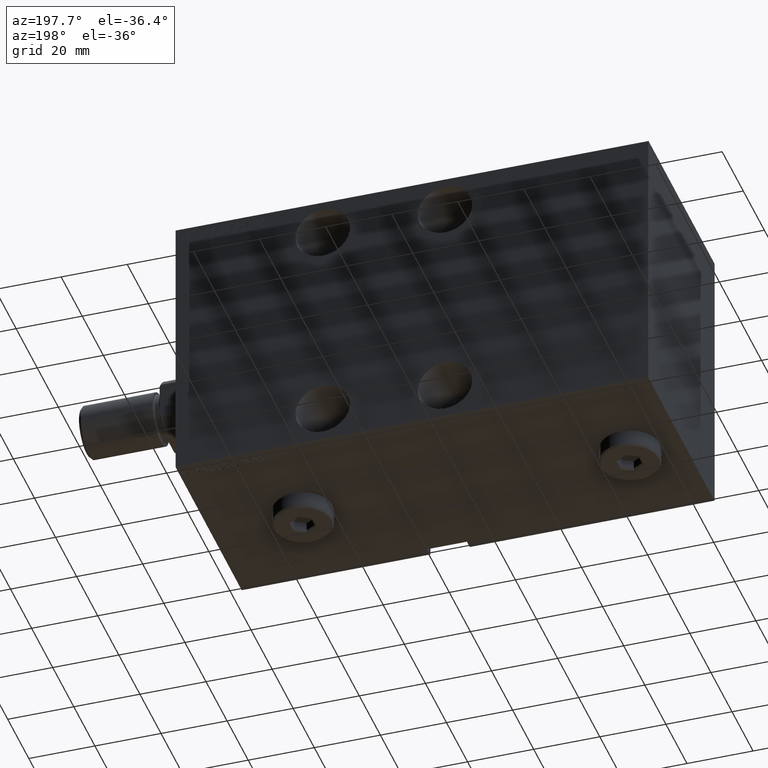
[diagram: clean part render]
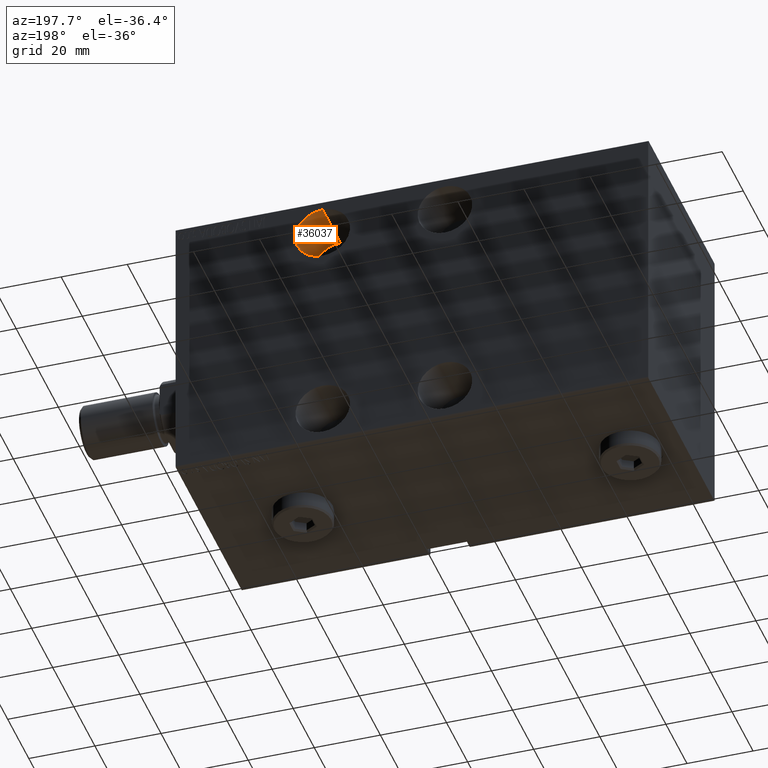
[diagram: same view with one face highlighted and labeled with its STEP entity id]
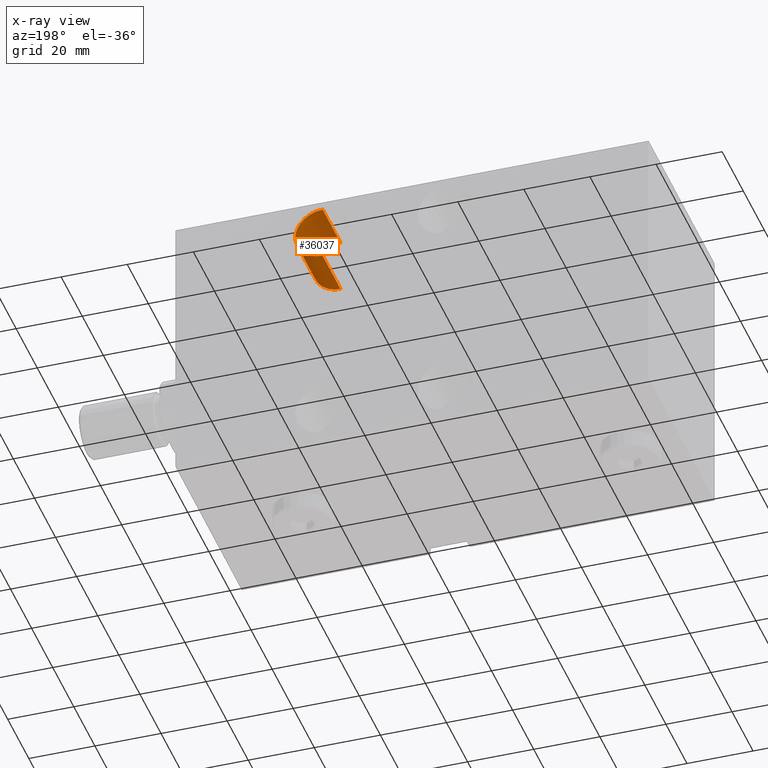
[diagram: x-ray of the same camera — body ghosted, the highlighted face saturated]
A machine part, auxiliary view. The second image highlights one B-rep face of the part: STEP entity #36037.
The next image is the same camera in x-ray: the body ghosted, the highlighted face saturated — about 0% of this face is hidden behind the body in this view.
In plain terms, the highlighted cylindrical surface (edge-blend (fillet) strip) has radius 8.25 mm, axis along (-0, 1, 0).
Its self-contained STEP definition (entity closure, byte-faithful):
#1408 = ORIENTED_EDGE ( 'NONE', *, *, #30223, .T. ) ;
#2018 = CARTESIAN_POINT ( 'NONE',  ( 44.50000000000000000, -14.49999999999999289, 39.74999999999999289 ) ) ;
#2187 = FACE_OUTER_BOUND ( 'NONE', #40436, .T. ) ;
#4718 = LINE ( 'NONE', #39663, #44273 ) ;
#5805 = DIRECTION ( 'NONE',  ( 0.000000000000000000, -1.000000000000000000, 0.000000000000000000 ) ) ;
#9118 = CYLINDRICAL_SURFACE ( 'NONE', #25991, 8.249999999999996447 ) ;
#9994 = CARTESIAN_POINT ( 'NONE',  ( 44.50000000000000000, -14.49999999999999289, 23.24999999999999645 ) ) ;
#10450 = AXIS2_PLACEMENT_3D ( 'NONE', #41585, #10881, #31057 ) ;
#10538 = CARTESIAN_POINT ( 'NONE',  ( 44.50000000000000000, -14.49999999999999289, 39.74999999999999289 ) ) ;
#10881 = DIRECTION ( 'NONE',  ( 0.000000000000000000, -1.000000000000000000, 0.000000000000000000 ) ) ;
#12175 = ORIENTED_EDGE ( 'NONE', *, *, #15144, .T. ) ;
#14620 = ORIENTED_EDGE ( 'NONE', *, *, #27626, .F. ) ;
#15144 = EDGE_CURVE ( 'NONE', #43858, #16906, #29796, .T. ) ;
#15434 = CARTESIAN_POINT ( 'NONE',  ( 44.50000000000000000, -31.49999999999999289, 23.24999999999999645 ) ) ;
#16906 = VERTEX_POINT ( 'NONE', #15434 ) ;
#18392 = DIRECTION ( 'NONE',  ( -0.000000000000000000, -1.000000000000000000, -0.000000000000000000 ) ) ;
#19211 = CARTESIAN_POINT ( 'NONE',  ( 44.50000000000000000, -31.49999999999999289, 39.74999999999999289 ) ) ;
#19866 = DIRECTION ( 'NONE',  ( 0.000000000000000000, 0.000000000000000000, -1.000000000000000000 ) ) ;
#20635 = DIRECTION ( 'NONE',  ( -0.000000000000000000, -1.000000000000000000, -0.000000000000000000 ) ) ;
#21186 = EDGE_CURVE ( 'NONE', #39387, #16906, #4718, .T. ) ;
#23078 = DIRECTION ( 'NONE',  ( 0.000000000000000000, 0.000000000000000000, -1.000000000000000000 ) ) ;
#23245 = CARTESIAN_POINT ( 'NONE',  ( 44.50000000000000000, -14.49999999999999289, 31.49999999999999289 ) ) ;
#25991 = AXIS2_PLACEMENT_3D ( 'NONE', #23245, #36456, #19866 ) ;
#27440 = VERTEX_POINT ( 'NONE', #2018 ) ;
#27626 = EDGE_CURVE ( 'NONE', #27440, #39387, #44338, .T. ) ;
#29353 = AXIS2_PLACEMENT_3D ( 'NONE', #33160, #5805, #23078 ) ;
#29409 = VECTOR ( 'NONE', #20635, 1000.000000000000000 ) ;
#29796 = CIRCLE ( 'NONE', #10450, 8.249999999999996447 ) ;
#30223 = EDGE_CURVE ( 'NONE', #27440, #43858, #34080, .T. ) ;
#31057 = DIRECTION ( 'NONE',  ( 0.000000000000000000, 0.000000000000000000, -1.000000000000000000 ) ) ;
#33160 = CARTESIAN_POINT ( 'NONE',  ( 44.50000000000000000, -14.49999999999999289, 31.49999999999999289 ) ) ;
#34080 = LINE ( 'NONE', #10538, #29409 ) ;
#36037 = ADVANCED_FACE ( 'NONE', ( #2187 ), #9118, .F. ) ;
#36456 = DIRECTION ( 'NONE',  ( -0.000000000000000000, -1.000000000000000000, -0.000000000000000000 ) ) ;
#39387 = VERTEX_POINT ( 'NONE', #9994 ) ;
#39663 = CARTESIAN_POINT ( 'NONE',  ( 44.50000000000000000, -14.49999999999999289, 23.24999999999999645 ) ) ;
#40436 = EDGE_LOOP ( 'NONE', ( #14620, #1408, #12175, #43086 ) ) ;
#41585 = CARTESIAN_POINT ( 'NONE',  ( 44.50000000000000000, -31.49999999999999289, 31.49999999999999289 ) ) ;
#43086 = ORIENTED_EDGE ( 'NONE', *, *, #21186, .F. ) ;
#43858 = VERTEX_POINT ( 'NONE', #19211 ) ;
#44273 = VECTOR ( 'NONE', #18392, 1000.000000000000000 ) ;
#44338 = CIRCLE ( 'NONE', #29353, 8.249999999999996447 ) ;